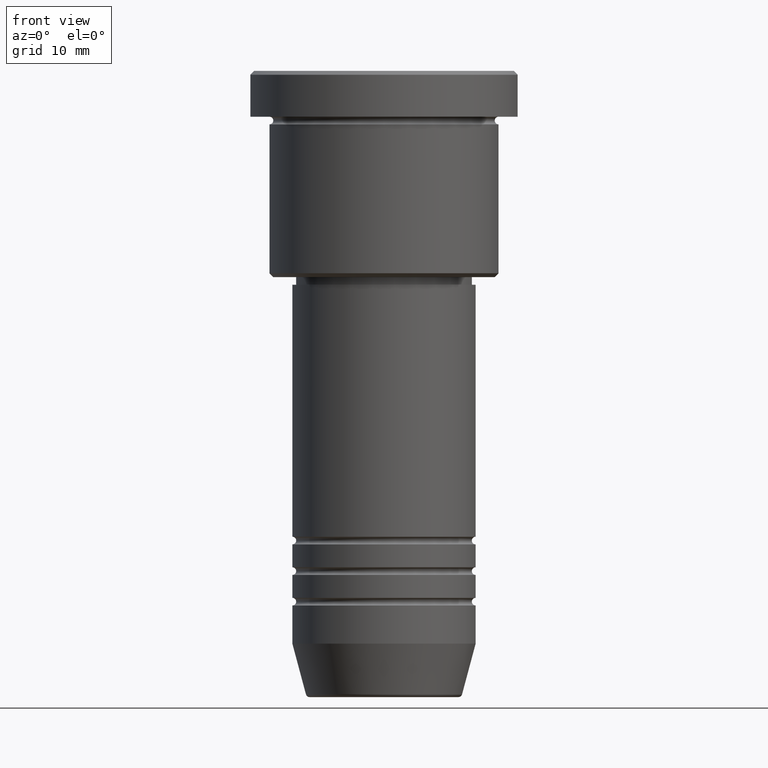
[diagram: clean part render]
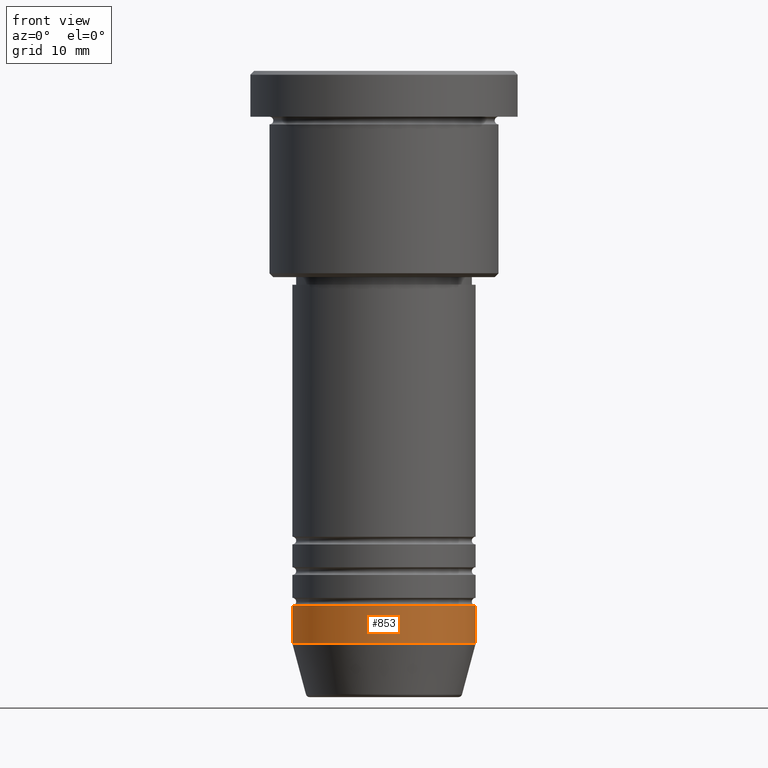
[diagram: same view with one face highlighted and labeled with its STEP entity id]
A machine part, front view. The second image highlights one B-rep face of the part: STEP entity #853.
In plain terms, the highlighted cylindrical surface (partial cylindrical patch) has radius 12 mm, axis along (-0, -0, 1).
Its self-contained STEP definition (entity closure, byte-faithful):
#70 = DIRECTION ( 'NONE',  ( 1.000000000000000000, 0.000000000000000000, 0.000000000000000000 ) ) ;
#73 = VERTEX_POINT ( 'NONE', #572 ) ;
#78 = DIRECTION ( 'NONE',  ( -0.000000000000000000, -0.000000000000000000, 1.000000000000000000 ) ) ;
#80 = DIRECTION ( 'NONE',  ( -0.000000000000000000, -0.000000000000000000, 1.000000000000000000 ) ) ;
#117 = CARTESIAN_POINT ( 'NONE',  ( -12.00000000000000000, 1.469576158976823947E-15, -75.00000000000000000 ) ) ;
#122 = EDGE_LOOP ( 'NONE', ( #949, #641, #1032, #287 ) ) ;
#152 = CYLINDRICAL_SURFACE ( 'NONE', #586, 12.00000000000000000 ) ;
#204 = EDGE_CURVE ( 'NONE', #698, #1010, #725, .T. ) ;
#222 = EDGE_CURVE ( 'NONE', #698, #539, #362, .T. ) ;
#242 = CARTESIAN_POINT ( 'NONE',  ( 12.00000000000000000, 0.000000000000000000, 0.000000000000000000 ) ) ;
#248 = LINE ( 'NONE', #242, #724 ) ;
#287 = ORIENTED_EDGE ( 'NONE', *, *, #854, .F. ) ;
#329 = AXIS2_PLACEMENT_3D ( 'NONE', #906, #78, #70 ) ;
#362 = CIRCLE ( 'NONE', #742, 12.00000000000000000 ) ;
#425 = CARTESIAN_POINT ( 'NONE',  ( 12.00000000000000000, 0.000000000000000000, -75.00000000000000000 ) ) ;
#447 = EDGE_CURVE ( 'NONE', #539, #73, #248, .T. ) ;
#450 = CARTESIAN_POINT ( 'NONE',  ( 0.000000000000000000, 0.000000000000000000, 0.000000000000000000 ) ) ;
#520 = DIRECTION ( 'NONE',  ( -0.000000000000000000, -0.000000000000000000, 1.000000000000000000 ) ) ;
#539 = VERTEX_POINT ( 'NONE', #425 ) ;
#543 = CARTESIAN_POINT ( 'NONE',  ( -12.00000000000000000, 1.469576158976823947E-15, 0.000000000000000000 ) ) ;
#544 = DIRECTION ( 'NONE',  ( -0.000000000000000000, -0.000000000000000000, 1.000000000000000000 ) ) ;
#572 = CARTESIAN_POINT ( 'NONE',  ( 12.00000000000000000, 0.000000000000000000, -70.00000000000000000 ) ) ;
#586 = AXIS2_PLACEMENT_3D ( 'NONE', #450, #544, #1095 ) ;
#641 = ORIENTED_EDGE ( 'NONE', *, *, #222, .T. ) ;
#671 = CIRCLE ( 'NONE', #329, 12.00000000000000000 ) ;
#676 = CARTESIAN_POINT ( 'NONE',  ( -12.00000000000000000, 1.469576158976823947E-15, -70.00000000000000000 ) ) ;
#698 = VERTEX_POINT ( 'NONE', #117 ) ;
#724 = VECTOR ( 'NONE', #520, 1000.000000000000000 ) ;
#725 = LINE ( 'NONE', #543, #839 ) ;
#742 = AXIS2_PLACEMENT_3D ( 'NONE', #889, #80, #1179 ) ;
#839 = VECTOR ( 'NONE', #895, 1000.000000000000000 ) ;
#853 = ADVANCED_FACE ( 'NONE', ( #875 ), #152, .T. ) ;
#854 = EDGE_CURVE ( 'NONE', #1010, #73, #671, .T. ) ;
#875 = FACE_OUTER_BOUND ( 'NONE', #122, .T. ) ;
#889 = CARTESIAN_POINT ( 'NONE',  ( 0.000000000000000000, 0.000000000000000000, -75.00000000000000000 ) ) ;
#895 = DIRECTION ( 'NONE',  ( -0.000000000000000000, -0.000000000000000000, 1.000000000000000000 ) ) ;
#906 = CARTESIAN_POINT ( 'NONE',  ( 0.000000000000000000, 0.000000000000000000, -70.00000000000000000 ) ) ;
#949 = ORIENTED_EDGE ( 'NONE', *, *, #204, .F. ) ;
#1010 = VERTEX_POINT ( 'NONE', #676 ) ;
#1032 = ORIENTED_EDGE ( 'NONE', *, *, #447, .T. ) ;
#1095 = DIRECTION ( 'NONE',  ( 1.000000000000000000, 0.000000000000000000, 0.000000000000000000 ) ) ;
#1179 = DIRECTION ( 'NONE',  ( 1.000000000000000000, 0.000000000000000000, 0.000000000000000000 ) ) ;